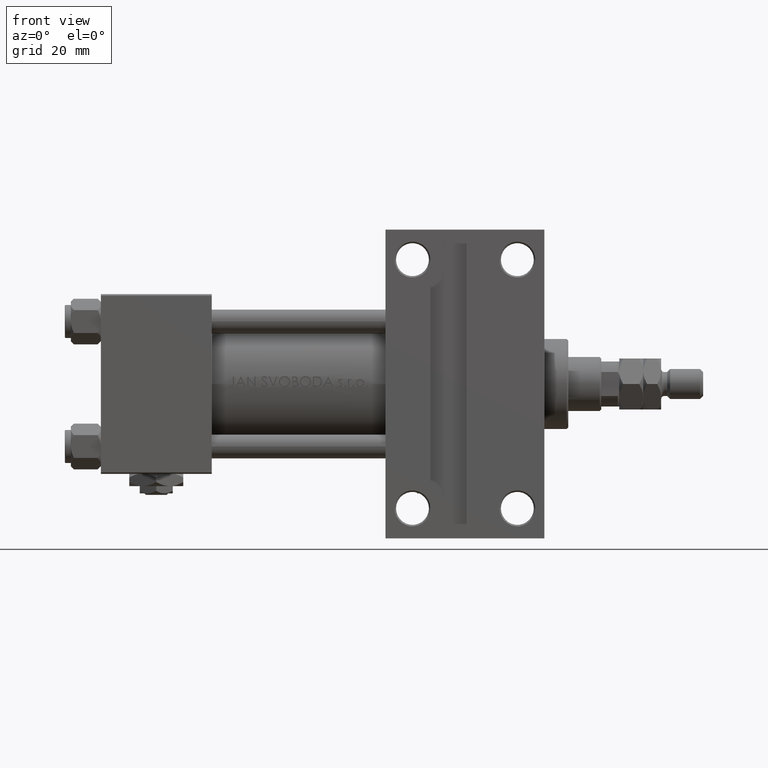
[diagram: clean part render]
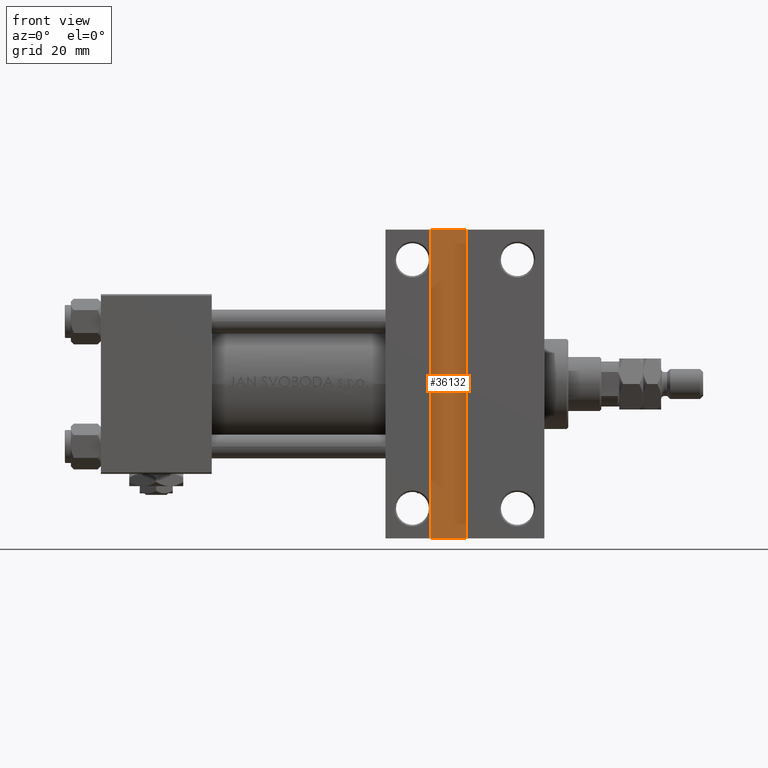
[diagram: same view with one face highlighted and labeled with its STEP entity id]
A machine part, front view. The second image highlights one B-rep face of the part: STEP entity #36132.
In plain terms, the highlighted planar face has unit normal (0, -1, 0).
Its self-contained STEP definition (entity closure, byte-faithful):
#1520 = VERTEX_POINT ( 'NONE', #1824 ) ;
#1824 = CARTESIAN_POINT ( 'NONE',  ( 121.9999999999999858, -51.50000000000000711, -25.99999999999999645 ) ) ;
#4222 = ORIENTED_EDGE ( 'NONE', *, *, #47521, .T. ) ;
#6793 = VECTOR ( 'NONE', #24652, 1000.000000000000000 ) ;
#8576 = ORIENTED_EDGE ( 'NONE', *, *, #12071, .T. ) ;
#9528 = VECTOR ( 'NONE', #31054, 1000.000000000000000 ) ;
#12071 = EDGE_CURVE ( 'NONE', #34598, #15887, #41688, .T. ) ;
#13971 = ORIENTED_EDGE ( 'NONE', *, *, #35284, .T. ) ;
#15887 = VERTEX_POINT ( 'NONE', #50502 ) ;
#16068 = PLANE ( 'NONE',  #22254 ) ;
#19147 = LINE ( 'NONE', #31318, #9528 ) ;
#20298 = FACE_OUTER_BOUND ( 'NONE', #20552, .T. ) ;
#20552 = EDGE_LOOP ( 'NONE', ( #4222, #21843, #13971, #8576 ) ) ;
#21843 = ORIENTED_EDGE ( 'NONE', *, *, #26096, .T. ) ;
#22254 = AXIS2_PLACEMENT_3D ( 'NONE', #32453, #45145, #49118 ) ;
#23776 = CARTESIAN_POINT ( 'NONE',  ( 121.9999999999999858, -51.49999999999999289, -25.99999999999999645 ) ) ;
#24652 = DIRECTION ( 'NONE',  ( -1.000000000000000000, -0.000000000000000000, -0.000000000000000000 ) ) ;
#25110 = CARTESIAN_POINT ( 'NONE',  ( 109.9999999999999858, -51.49999999999999289, -25.99999999999999645 ) ) ;
#25785 = CARTESIAN_POINT ( 'NONE',  ( 109.9999999999999858, 51.50000000000000711, -25.99999999999999645 ) ) ;
#26096 = EDGE_CURVE ( 'NONE', #1520, #27627, #32866, .T. ) ;
#27627 = VERTEX_POINT ( 'NONE', #25110 ) ;
#29141 = CARTESIAN_POINT ( 'NONE',  ( 109.9999999999999858, 51.50000000000000711, -25.99999999999999645 ) ) ;
#30137 = VECTOR ( 'NONE', #39950, 1000.000000000000000 ) ;
#31054 = DIRECTION ( 'NONE',  ( 0.000000000000000000, 1.000000000000000000, 0.000000000000000000 ) ) ;
#31318 = CARTESIAN_POINT ( 'NONE',  ( 109.9999999999999858, -51.49999999999999289, -25.99999999999999645 ) ) ;
#31977 = LINE ( 'NONE', #23776, #30137 ) ;
#32453 = CARTESIAN_POINT ( 'NONE',  ( 0.000000000000000000, 0.000000000000000000, -25.99999999999999645 ) ) ;
#32866 = LINE ( 'NONE', #33905, #6793 ) ;
#33905 = CARTESIAN_POINT ( 'NONE',  ( 109.9999999999999858, -51.49999999999999289, -25.99999999999999645 ) ) ;
#34598 = VERTEX_POINT ( 'NONE', #29141 ) ;
#35284 = EDGE_CURVE ( 'NONE', #27627, #34598, #19147, .T. ) ;
#36132 = ADVANCED_FACE ( 'NONE', ( #20298 ), #16068, .T. ) ;
#37727 = DIRECTION ( 'NONE',  ( 1.000000000000000000, 0.000000000000000000, 0.000000000000000000 ) ) ;
#39950 = DIRECTION ( 'NONE',  ( -0.000000000000000000, -1.000000000000000000, -0.000000000000000000 ) ) ;
#41688 = LINE ( 'NONE', #25785, #47601 ) ;
#45145 = DIRECTION ( 'NONE',  ( 0.000000000000000000, 0.000000000000000000, -1.000000000000000000 ) ) ;
#47521 = EDGE_CURVE ( 'NONE', #15887, #1520, #31977, .T. ) ;
#47601 = VECTOR ( 'NONE', #37727, 1000.000000000000000 ) ;
#49118 = DIRECTION ( 'NONE',  ( -1.000000000000000000, 0.000000000000000000, -0.000000000000000000 ) ) ;
#50502 = CARTESIAN_POINT ( 'NONE',  ( 121.9999999999999858, 51.50000000000000711, -25.99999999999999645 ) ) ;